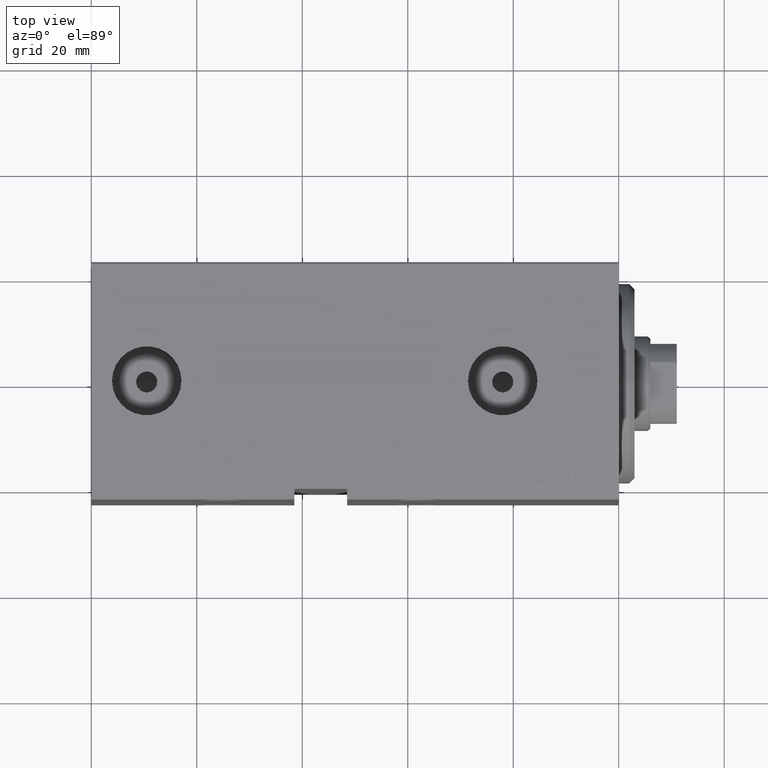
[diagram: clean part render]
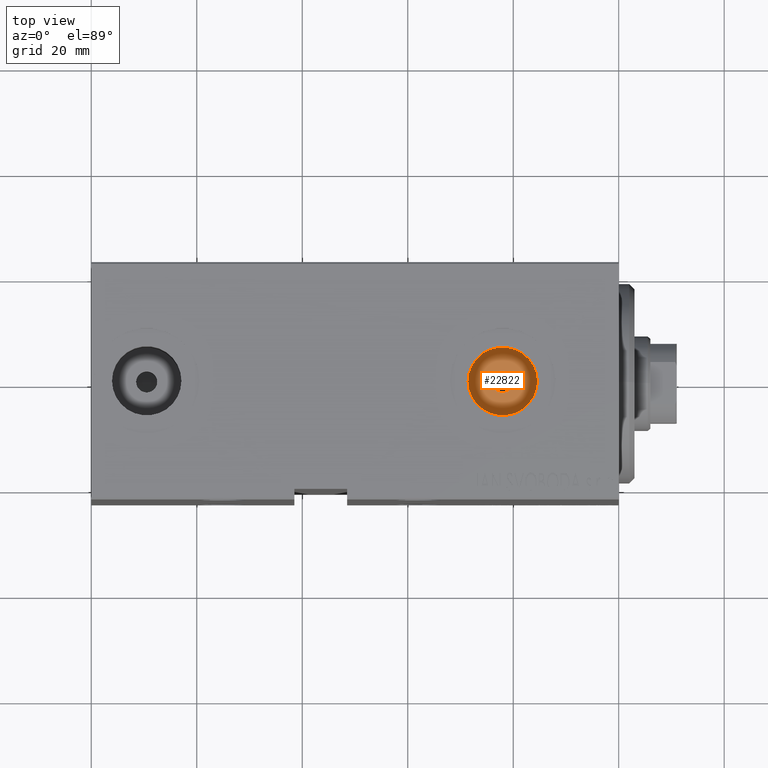
[diagram: same view with one face highlighted and labeled with its STEP entity id]
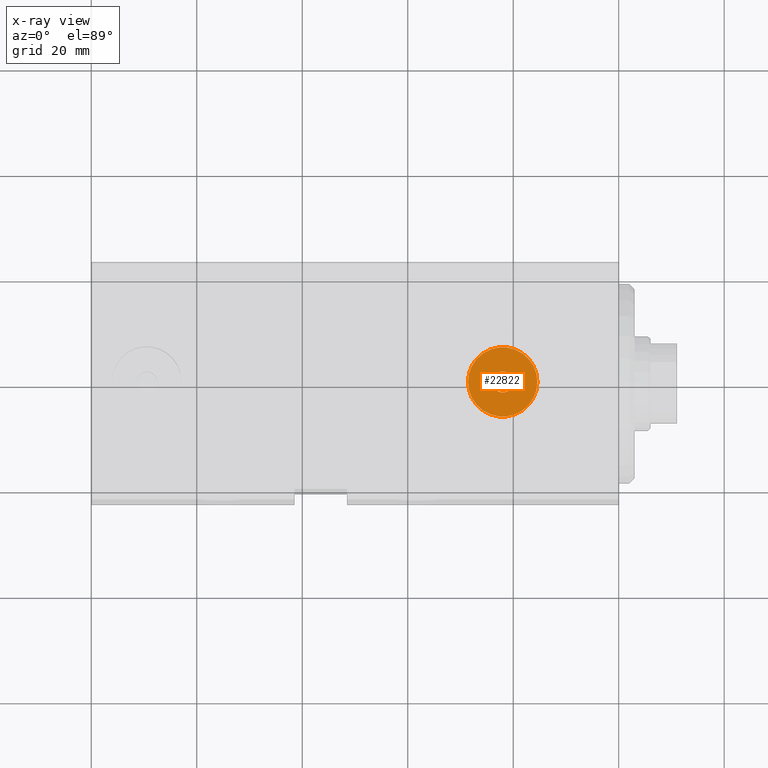
[diagram: x-ray of the same camera — body ghosted, the highlighted face saturated]
A machine part, top view. The second image highlights one B-rep face of the part: STEP entity #22822.
The next image is the same camera in x-ray: the body ghosted, the highlighted face saturated — about 0% of this face is hidden behind the body in this view.
In plain terms, the highlighted planar face has unit normal (0, 0, 1).
Its self-contained STEP definition (entity closure, byte-faithful):
#162 = AXIS2_PLACEMENT_3D ( 'NONE', #19397, #19175, #15590 ) ;
#694 = DIRECTION ( 'NONE',  ( 1.000000000000000000, 0.000000000000000000, -0.000000000000000000 ) ) ;
#2346 = EDGE_CURVE ( 'NONE', #15297, #24253, #29740, .T. ) ;
#2901 = AXIS2_PLACEMENT_3D ( 'NONE', #38214, #28324, #694 ) ;
#3413 = CARTESIAN_POINT ( 'NONE',  ( 22.00000000000000000, -5.011423375044111400E-15, 19.23999999999999844 ) ) ;
#6725 = VERTEX_POINT ( 'NONE', #33988 ) ;
#6753 = CARTESIAN_POINT ( 'NONE',  ( 19.99999999999999645, -4.766494015214641104E-15, 19.23999999999999844 ) ) ;
#6781 = DIRECTION ( 'NONE',  ( 1.000000000000000000, 0.000000000000000000, 0.000000000000000000 ) ) ;
#6985 = FACE_OUTER_BOUND ( 'NONE', #8684, .T. ) ;
#7103 = CARTESIAN_POINT ( 'NONE',  ( 22.00000000000000000, -5.011423375044111400E-15, 19.23999999999999844 ) ) ;
#7322 = DIRECTION ( 'NONE',  ( 1.000000000000000000, 0.000000000000000000, 0.000000000000000000 ) ) ;
#8684 = EDGE_LOOP ( 'NONE', ( #28745, #21965 ) ) ;
#9486 = CARTESIAN_POINT ( 'NONE',  ( 22.00000000000000000, -5.011423375044111400E-15, 19.23999999999999844 ) ) ;
#10356 = AXIS2_PLACEMENT_3D ( 'NONE', #3413, #27445, #6781 ) ;
#10803 = PLANE ( 'NONE',  #2901 ) ;
#13260 = CIRCLE ( 'NONE', #38396, 2.000000000000001776 ) ;
#15061 = ORIENTED_EDGE ( 'NONE', *, *, #33646, .F. ) ;
#15297 = VERTEX_POINT ( 'NONE', #40266 ) ;
#15298 = EDGE_CURVE ( 'NONE', #24253, #15297, #27130, .T. ) ;
#15590 = DIRECTION ( 'NONE',  ( 1.000000000000000000, 0.000000000000000000, 0.000000000000000000 ) ) ;
#15647 = AXIS2_PLACEMENT_3D ( 'NONE', #9486, #27847, #36669 ) ;
#16850 = CARTESIAN_POINT ( 'NONE',  ( 28.57999999999999829, -5.011423375044111400E-15, 19.23999999999999844 ) ) ;
#19175 = DIRECTION ( 'NONE',  ( 0.000000000000000000, 0.000000000000000000, 1.000000000000000000 ) ) ;
#19397 = CARTESIAN_POINT ( 'NONE',  ( 22.00000000000000000, -5.011423375044111400E-15, 19.23999999999999844 ) ) ;
#20798 = DIRECTION ( 'NONE',  ( 0.000000000000000000, 0.000000000000000000, 1.000000000000000000 ) ) ;
#21965 = ORIENTED_EDGE ( 'NONE', *, *, #2346, .T. ) ;
#22822 = ADVANCED_FACE ( 'NONE', ( #30800, #6985 ), #10803, .T. ) ;
#23213 = ORIENTED_EDGE ( 'NONE', *, *, #41021, .F. ) ;
#24253 = VERTEX_POINT ( 'NONE', #16850 ) ;
#27130 = CIRCLE ( 'NONE', #15647, 6.579999999999999183 ) ;
#27445 = DIRECTION ( 'NONE',  ( 0.000000000000000000, 0.000000000000000000, 1.000000000000000000 ) ) ;
#27847 = DIRECTION ( 'NONE',  ( 0.000000000000000000, 0.000000000000000000, 1.000000000000000000 ) ) ;
#28324 = DIRECTION ( 'NONE',  ( 0.000000000000000000, 0.000000000000000000, 1.000000000000000000 ) ) ;
#28745 = ORIENTED_EDGE ( 'NONE', *, *, #15298, .T. ) ;
#29740 = CIRCLE ( 'NONE', #10356, 6.579999999999999183 ) ;
#30800 = FACE_BOUND ( 'NONE', #35932, .T. ) ;
#33646 = EDGE_CURVE ( 'NONE', #42832, #6725, #34613, .T. ) ;
#33988 = CARTESIAN_POINT ( 'NONE',  ( 24.00000000000000000, -5.011423375044111400E-15, 19.23999999999999844 ) ) ;
#34613 = CIRCLE ( 'NONE', #162, 2.000000000000001776 ) ;
#35932 = EDGE_LOOP ( 'NONE', ( #23213, #15061 ) ) ;
#36669 = DIRECTION ( 'NONE',  ( 1.000000000000000000, 0.000000000000000000, 0.000000000000000000 ) ) ;
#38214 = CARTESIAN_POINT ( 'NONE',  ( 22.00000000000000000, -5.011423375044111400E-15, 19.23999999999999844 ) ) ;
#38396 = AXIS2_PLACEMENT_3D ( 'NONE', #7103, #20798, #7322 ) ;
#40266 = CARTESIAN_POINT ( 'NONE',  ( 15.41999999999999993, -4.205605781205153147E-15, 19.23999999999999844 ) ) ;
#41021 = EDGE_CURVE ( 'NONE', #6725, #42832, #13260, .T. ) ;
#42832 = VERTEX_POINT ( 'NONE', #6753 ) ;